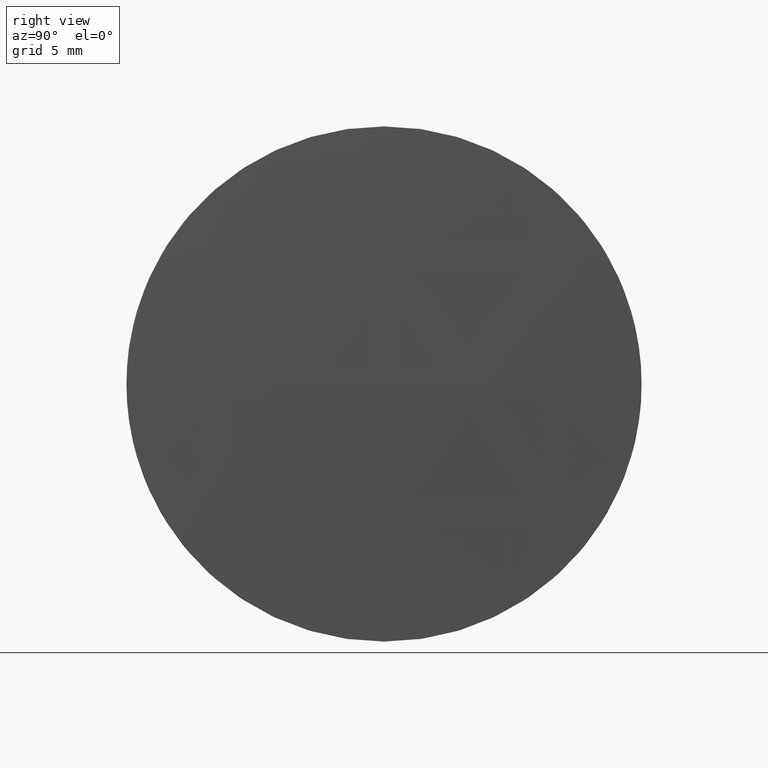
[diagram: clean part render]
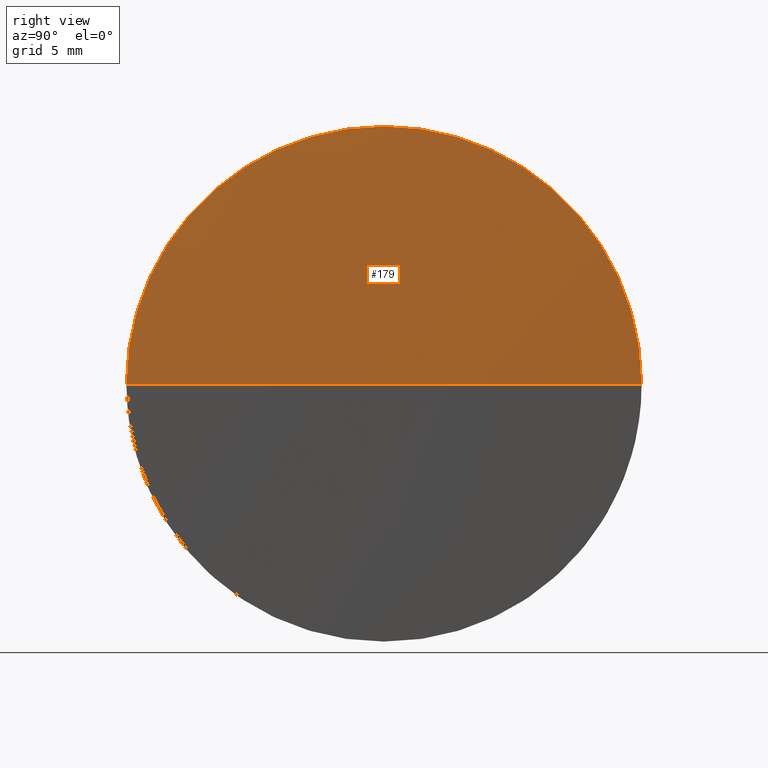
[diagram: same view with one face highlighted and labeled with its STEP entity id]
A machine part, right view. The second image highlights one B-rep face of the part: STEP entity #179.
In plain terms, the highlighted spherical surface has radius 459 mm.
Its self-contained STEP definition (entity closure, byte-faithful):
#6 = VERTEX_POINT ( 'NONE', #132 ) ;
#7 = CIRCLE ( 'NONE', #59, 459.0000000000000000 ) ;
#8 = EDGE_CURVE ( 'NONE', #30, #49, #161, .T. ) ;
#11 = FACE_OUTER_BOUND ( 'NONE', #144, .T. ) ;
#13 = DIRECTION ( 'NONE',  ( 0.0000000000000000000, 1.224646799147353200E-016, -1.000000000000000000 ) ) ;
#14 = CARTESIAN_POINT ( 'NONE',  ( -340.0503935691618800, 65.23355492641219700, 0.0000000000000000000 ) ) ;
#15 = CIRCLE ( 'NONE', #22, 12.70000000000000300 ) ;
#22 = AXIS2_PLACEMENT_3D ( 'NONE', #176, #35, #37 ) ;
#24 = EDGE_CURVE ( 'NONE', #75, #49, #15, .T. ) ;
#30 = VERTEX_POINT ( 'NONE', #90 ) ;
#33 = DIRECTION ( 'NONE',  ( 0.0000000000000000000, 1.000000000000000000, 1.224646799147353200E-016 ) ) ;
#34 = DIRECTION ( 'NONE',  ( 0.0000000000000000000, 1.000000000000000000, 0.0000000000000000000 ) ) ;
#35 = DIRECTION ( 'NONE',  ( -1.000000000000000000, -0.0000000000000000000, -0.0000000000000000000 ) ) ;
#37 = DIRECTION ( 'NONE',  ( 0.0000000000000000000, 0.0000000000000000000, 1.000000000000000000 ) ) ;
#49 = VERTEX_POINT ( 'NONE', #104 ) ;
#51 = CARTESIAN_POINT ( 'NONE',  ( 118.7738756233035200, 65.23355492641219700, 12.70000000000000300 ) ) ;
#59 = AXIS2_PLACEMENT_3D ( 'NONE', #14, #13, #33 ) ;
#63 = ORIENTED_EDGE ( 'NONE', *, *, #24, .F. ) ;
#72 = EDGE_CURVE ( 'NONE', #6, #75, #108, .T. ) ;
#75 = VERTEX_POINT ( 'NONE', #51 ) ;
#76 = CARTESIAN_POINT ( 'NONE',  ( 118.7738756233035200, 65.23355492641219700, 0.0000000000000000000 ) ) ;
#86 = SPHERICAL_SURFACE ( 'NONE', #98, 459.0000000000000000 ) ;
#88 = ORIENTED_EDGE ( 'NONE', *, *, #8, .T. ) ;
#90 = CARTESIAN_POINT ( 'NONE',  ( 118.9496064308381300, 65.23355492641222500, 0.0000000000000000000 ) ) ;
#92 = DIRECTION ( 'NONE',  ( 0.0000000000000000000, 0.0000000000000000000, 1.000000000000000000 ) ) ;
#98 = AXIS2_PLACEMENT_3D ( 'NONE', #135, #139, #34 ) ;
#104 = CARTESIAN_POINT ( 'NONE',  ( 118.7738756233035700, 77.93355492641237000, 0.0000000000000000000 ) ) ;
#108 = CIRCLE ( 'NONE', #111, 12.70000000000000300 ) ;
#111 = AXIS2_PLACEMENT_3D ( 'NONE', #76, #148, #92 ) ;
#114 = AXIS2_PLACEMENT_3D ( 'NONE', #149, #133, #163 ) ;
#128 = EDGE_CURVE ( 'NONE', #30, #6, #7, .T. ) ;
#129 = ORIENTED_EDGE ( 'NONE', *, *, #128, .F. ) ;
#132 = CARTESIAN_POINT ( 'NONE',  ( 118.7738756233035700, 52.53355492641202300, -1.555301434917158900E-015 ) ) ;
#133 = DIRECTION ( 'NONE',  ( -0.0000000000000000000, 0.0000000000000000000, 1.000000000000000000 ) ) ;
#135 = CARTESIAN_POINT ( 'NONE',  ( -340.0503935691618800, 65.23355492641219700, 0.0000000000000000000 ) ) ;
#139 = DIRECTION ( 'NONE',  ( -0.0000000000000000000, 0.0000000000000000000, -1.000000000000000000 ) ) ;
#144 = EDGE_LOOP ( 'NONE', ( #129, #88, #63, #150 ) ) ;
#148 = DIRECTION ( 'NONE',  ( -1.000000000000000000, -0.0000000000000000000, -0.0000000000000000000 ) ) ;
#149 = CARTESIAN_POINT ( 'NONE',  ( -340.0503935691618800, 65.23355492641219700, 0.0000000000000000000 ) ) ;
#150 = ORIENTED_EDGE ( 'NONE', *, *, #72, .F. ) ;
#161 = CIRCLE ( 'NONE', #114, 459.0000000000000000 ) ;
#163 = DIRECTION ( 'NONE',  ( 1.000000000000000000, 0.0000000000000000000, 0.0000000000000000000 ) ) ;
#176 = CARTESIAN_POINT ( 'NONE',  ( 118.7738756233035200, 65.23355492641219700, 0.0000000000000000000 ) ) ;
#179 = ADVANCED_FACE ( 'NONE', ( #11 ), #86, .T. ) ;